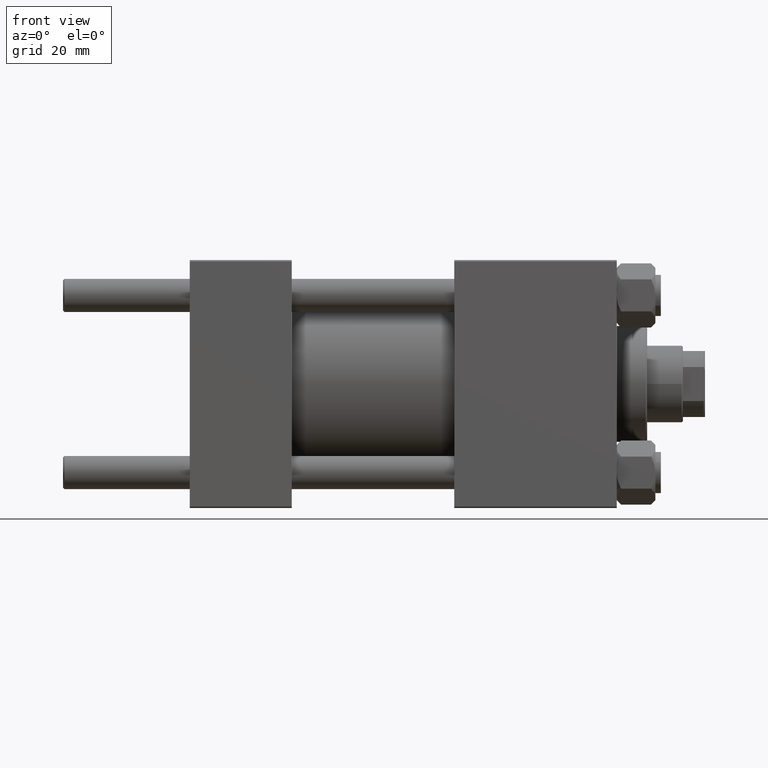
[diagram: clean part render]
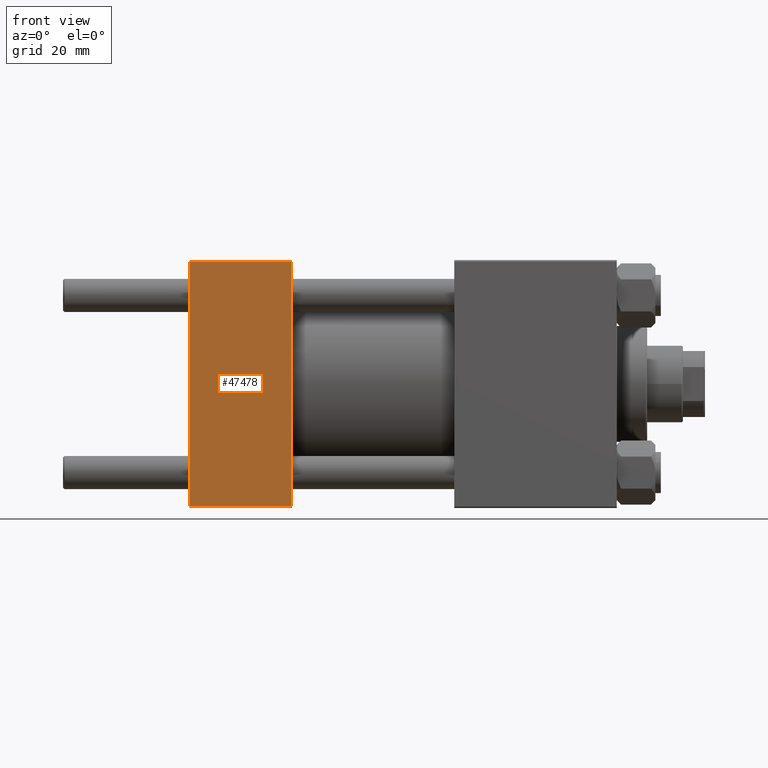
[diagram: same view with one face highlighted and labeled with its STEP entity id]
A machine part, front view. The second image highlights one B-rep face of the part: STEP entity #47478.
In plain terms, the highlighted planar face has unit normal (0, 1, 0).
Its self-contained STEP definition (entity closure, byte-faithful):
#848 = VERTEX_POINT ( 'NONE', #41248 ) ;
#2064 = LINE ( 'NONE', #13877, #4911 ) ;
#3345 = CARTESIAN_POINT ( 'NONE',  ( 0.000000000000000000, -45.00000000000000711, 45.00000000000000000 ) ) ;
#4612 = ORIENTED_EDGE ( 'NONE', *, *, #16348, .T. ) ;
#4911 = VECTOR ( 'NONE', #14131, 1000.000000000000000 ) ;
#8127 = DIRECTION ( 'NONE',  ( 1.000000000000000000, 0.000000000000000000, 0.000000000000000000 ) ) ;
#8506 = EDGE_CURVE ( 'NONE', #21086, #848, #2064, .T. ) ;
#9226 = CARTESIAN_POINT ( 'NONE',  ( 37.00000000000000000, -45.00000000000000711, 44.49999999999997158 ) ) ;
#10716 = VECTOR ( 'NONE', #38402, 1000.000000000000000 ) ;
#10887 = LINE ( 'NONE', #3345, #10716 ) ;
#11560 = ORIENTED_EDGE ( 'NONE', *, *, #8506, .T. ) ;
#13872 = VECTOR ( 'NONE', #46630, 1000.000000000000000 ) ;
#13877 = CARTESIAN_POINT ( 'NONE',  ( 37.00000000000000000, -45.00000000000000711, 44.49999999999997158 ) ) ;
#14131 = DIRECTION ( 'NONE',  ( -1.000000000000000000, 0.000000000000000000, 0.000000000000000000 ) ) ;
#14649 = EDGE_CURVE ( 'NONE', #848, #42456, #10887, .T. ) ;
#16348 = EDGE_CURVE ( 'NONE', #42456, #44772, #31075, .T. ) ;
#19436 = CARTESIAN_POINT ( 'NONE',  ( 37.00000000000000000, -45.00000000000000711, 45.00000000000000000 ) ) ;
#20036 = FACE_OUTER_BOUND ( 'NONE', #26022, .T. ) ;
#20806 = DIRECTION ( 'NONE',  ( -0.000000000000000000, 1.000000000000000000, 7.709882115452478166E-17 ) ) ;
#21086 = VERTEX_POINT ( 'NONE', #9226 ) ;
#26022 = EDGE_LOOP ( 'NONE', ( #40028, #4612, #38308, #11560 ) ) ;
#31075 = LINE ( 'NONE', #46430, #38215 ) ;
#34573 = LINE ( 'NONE', #19436, #13872 ) ;
#36186 = PLANE ( 'NONE',  #44685 ) ;
#37580 = EDGE_CURVE ( 'NONE', #21086, #44772, #34573, .T. ) ;
#38215 = VECTOR ( 'NONE', #8127, 1000.000000000000000 ) ;
#38308 = ORIENTED_EDGE ( 'NONE', *, *, #37580, .F. ) ;
#38402 = DIRECTION ( 'NONE',  ( 0.000000000000000000, 7.709882115452476934E-17, -1.000000000000000000 ) ) ;
#40028 = ORIENTED_EDGE ( 'NONE', *, *, #14649, .T. ) ;
#40587 = CARTESIAN_POINT ( 'NONE',  ( 0.000000000000000000, -45.00000000000000000, -44.49999999999995737 ) ) ;
#41248 = CARTESIAN_POINT ( 'NONE',  ( 0.000000000000000000, -45.00000000000000711, 44.49999999999997158 ) ) ;
#42358 = CARTESIAN_POINT ( 'NONE',  ( 37.00000000000000000, -45.00000000000000000, -44.49999999999995737 ) ) ;
#42456 = VERTEX_POINT ( 'NONE', #40587 ) ;
#43487 = CARTESIAN_POINT ( 'NONE',  ( 37.00000000000000000, -45.00000000000000711, 45.00000000000000000 ) ) ;
#44685 = AXIS2_PLACEMENT_3D ( 'NONE', #43487, #20806, #47982 ) ;
#44772 = VERTEX_POINT ( 'NONE', #42358 ) ;
#46430 = CARTESIAN_POINT ( 'NONE',  ( 37.00000000000000000, -45.00000000000000000, -44.49999999999998579 ) ) ;
#46630 = DIRECTION ( 'NONE',  ( 0.000000000000000000, 7.709882115452476934E-17, -1.000000000000000000 ) ) ;
#47478 = ADVANCED_FACE ( 'NONE', ( #20036 ), #36186, .F. ) ;
#47982 = DIRECTION ( 'NONE',  ( 0.000000000000000000, -7.709882115452478166E-17, 1.000000000000000000 ) ) ;